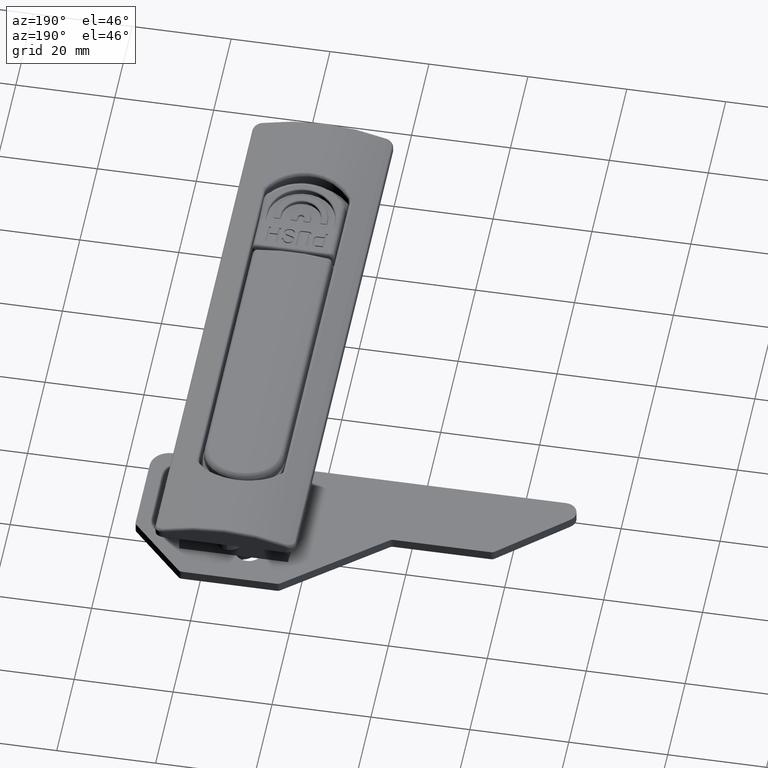
[diagram: clean part render]
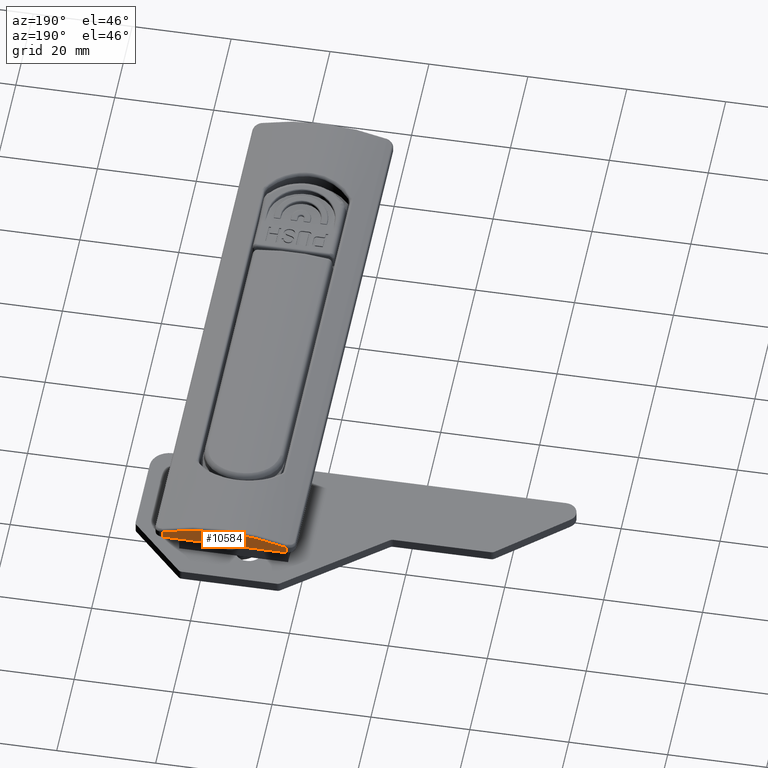
[diagram: same view with one face highlighted and labeled with its STEP entity id]
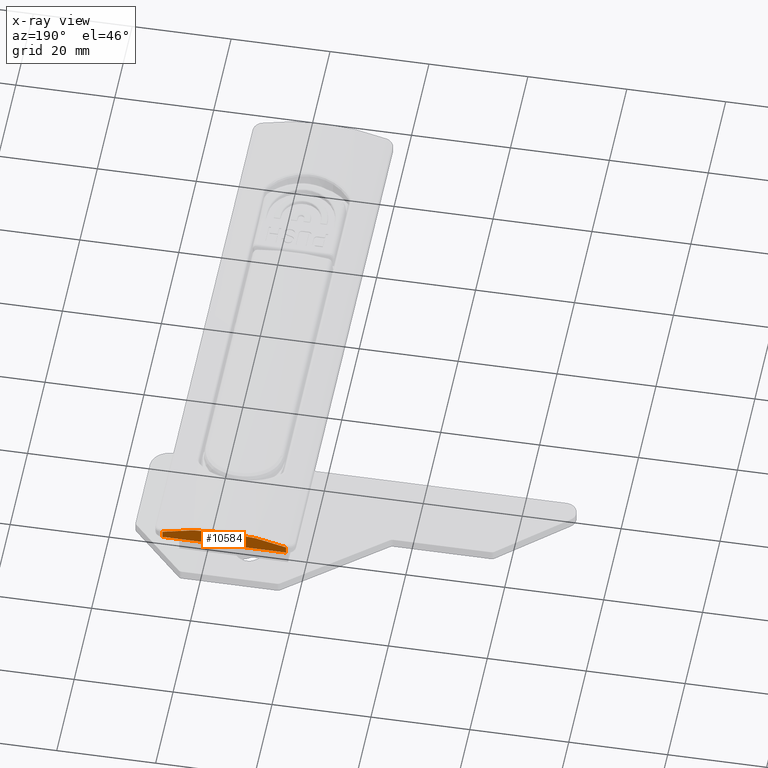
[diagram: x-ray of the same camera — body ghosted, the highlighted face saturated]
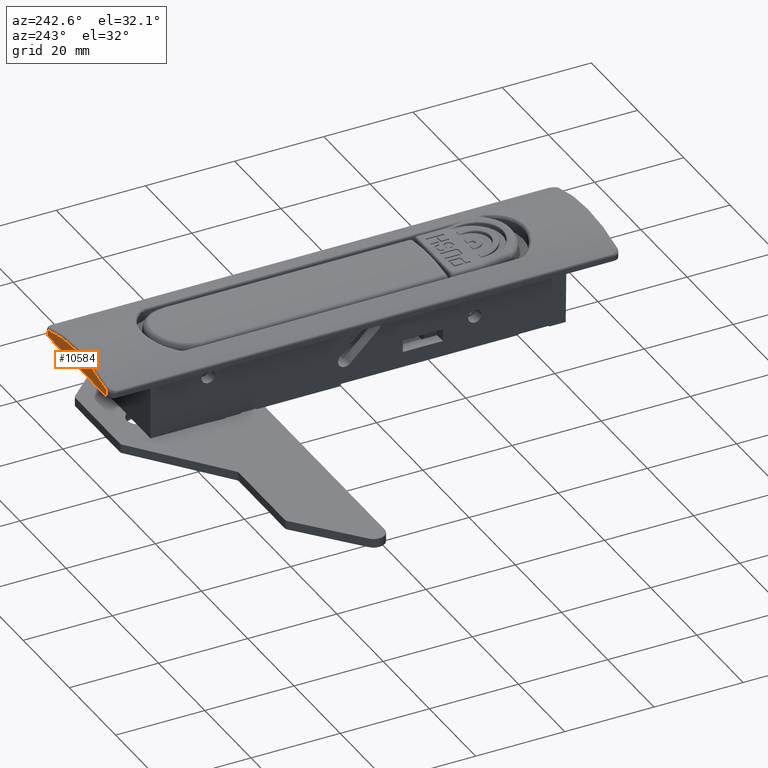
[diagram: same view with one face highlighted and labeled with its STEP entity id]
A machine part, auxiliary view. The second image highlights one B-rep face of the part: STEP entity #10584.
The next image is the same camera in x-ray: the body ghosted, the highlighted face saturated — about 0% of this face is hidden behind the body in this view.
A second angle (auxiliary view) of the same face is appended — the face is thin or edge-on in the first view.
In plain terms, the highlighted planar face has unit normal (0, -1, 0).
Its self-contained STEP definition (entity closure, byte-faithful):
#841=FACE_OUTER_BOUND('',#1500,.T.);
#1500=EDGE_LOOP('',(#7355,#7356,#7357,#7358));
#2246=CIRCLE('',#11332,39.6978606713009);
#2733=LINE('',#16006,#3589);
#2827=LINE('',#16711,#3683);
#2828=LINE('',#16712,#3684);
#3589=VECTOR('',#12608,25.);
#3683=VECTOR('',#12820,1.48064967451319);
#3684=VECTOR('',#12821,1.4806496746193);
#4502=VERTEX_POINT('',#16003);
#4503=VERTEX_POINT('',#16005);
#4620=VERTEX_POINT('',#16708);
#4621=VERTEX_POINT('',#16709);
#5548=EDGE_CURVE('',#4503,#4502,#2733,.T.);
#5692=EDGE_CURVE('',#4620,#4621,#2246,.T.);
#5693=EDGE_CURVE('',#4621,#4503,#2827,.T.);
#5694=EDGE_CURVE('',#4620,#4502,#2828,.T.);
#7355=ORIENTED_EDGE('',*,*,#5692,.T.);
#7356=ORIENTED_EDGE('',*,*,#5693,.T.);
#7357=ORIENTED_EDGE('',*,*,#5548,.T.);
#7358=ORIENTED_EDGE('',*,*,#5694,.F.);
#10312=PLANE('',#11331);
#10584=ADVANCED_FACE('',(#841),#10312,.F.);
#11331=AXIS2_PLACEMENT_3D('',#16707,#12816,#12817);
#11332=AXIS2_PLACEMENT_3D('',#16710,#12818,#12819);
#12608=DIRECTION('',(0.,-1.,0.));
#12816=DIRECTION('center_axis',(1.,0.,0.));
#12817=DIRECTION('ref_axis',(0.,0.,1.));
#12818=DIRECTION('center_axis',(-1.,0.,0.));
#12819=DIRECTION('ref_axis',(0.,0.,1.));
#12820=DIRECTION('',(0.,0.,-1.));
#12821=DIRECTION('',(0.,0.,-1.));
#16003=CARTESIAN_POINT('',(39.5958743867389,40.6051238898242,-3.99999999992434));
#16005=CARTESIAN_POINT('',(39.5958743867389,65.6051238898242,-3.99999999992434));
#16006=CARTESIAN_POINT('',(39.5958743867389,212.476781018985,-3.99999999992434));
#16707=CARTESIAN_POINT('Origin',(39.5958743865581,65.6051238898242,0.));
#16708=CARTESIAN_POINT('',(39.5958743865581,40.6051238898242,-2.51935032530504));
#16709=CARTESIAN_POINT('',(39.5958743865698,65.6051238898242,-2.51935032541115));
#16710=CARTESIAN_POINT('Origin',(39.5958743865581,53.1051238896642,-40.197860671151));
#16711=CARTESIAN_POINT('',(39.5958743865698,65.6051238898242,0.));
#16712=CARTESIAN_POINT('',(39.5958743865581,40.6051238898242,0.));